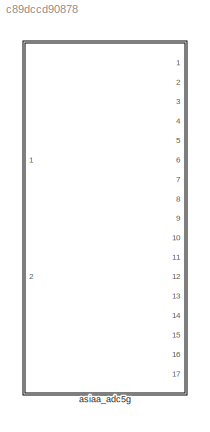
MODEL slx_c89dccd90878
KIND model
CONFIG AbsTol = auto
CONFIG EnableMultiTasking = off
CONFIG FixedStep = auto
CONFIG MaxStep = auto
CONFIG MinStep = auto
CONFIG RelTol = 1e-3
CONFIG SampleTimeConstraint = Unconstrained
CONFIG Solver = VariableStepAuto
CONFIG SolverName = VariableStepAuto
CONFIG StartTime = 0.0
CONFIG StopTime = 10.0
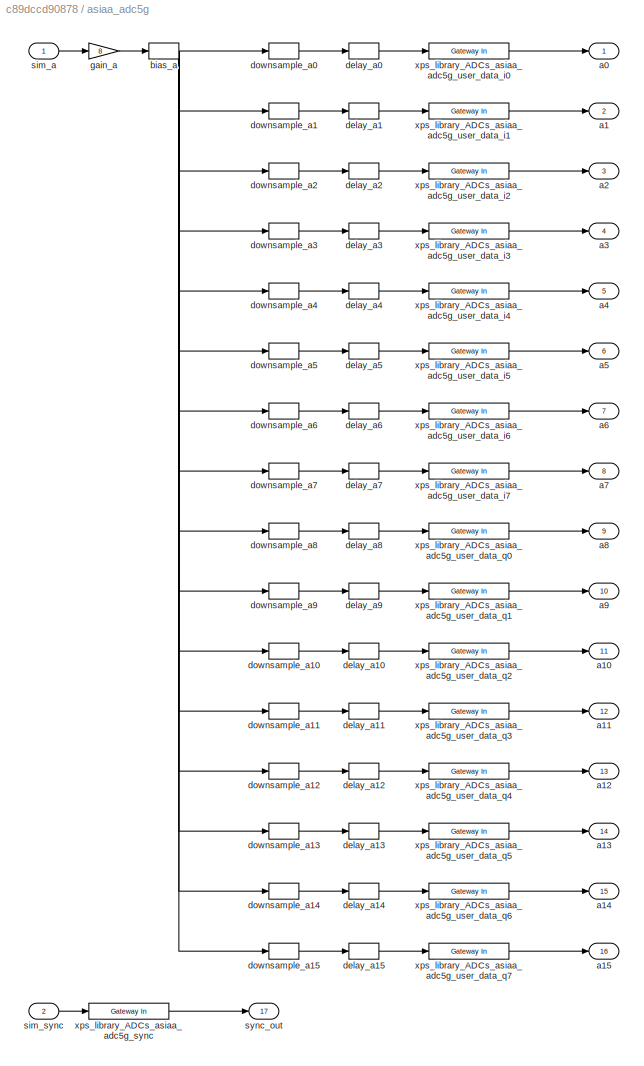
BLOCK [SubSystem] asiaa_adc5g
  Ports = [2, 17]
  RequestExecContextInheritance = off
  ShowPortLabels = SignalName
  Tag = xps:adc5g
  UserDataPersistent = on
  Variant = off
BLOCK [Outport] asiaa_adc5g/a0
  IconDisplay = Port number
BLOCK [Outport] asiaa_adc5g/a1
  IconDisplay = Port number
  Port = 2
BLOCK [Outport] asiaa_adc5g/a10
  IconDisplay = Port number
  Port = 11
BLOCK [Outport] asiaa_adc5g/a11
  IconDisplay = Port number
  Port = 12
BLOCK [Outport] asiaa_adc5g/a12
  IconDisplay = Port number
  Port = 13
BLOCK [Outport] asiaa_adc5g/a13
  IconDisplay = Port number
  Port = 14
BLOCK [Outport] asiaa_adc5g/a14
  IconDisplay = Port number
  Port = 15
BLOCK [Outport] asiaa_adc5g/a15
  IconDisplay = Port number
  Port = 16
BLOCK [Outport] asiaa_adc5g/a2
  IconDisplay = Port number
  Port = 3
BLOCK [Outport] asiaa_adc5g/a3
  IconDisplay = Port number
  Port = 4
BLOCK [Outport] asiaa_adc5g/a4
  IconDisplay = Port number
  Port = 5
BLOCK [Outport] asiaa_adc5g/a5
  IconDisplay = Port number
  Port = 6
BLOCK [Outport] asiaa_adc5g/a6
  IconDisplay = Port number
  Port = 7
BLOCK [Outport] asiaa_adc5g/a7
  IconDisplay = Port number
  Port = 8
BLOCK [Outport] asiaa_adc5g/a8
  IconDisplay = Port number
  Port = 9
BLOCK [Outport] asiaa_adc5g/a9
  IconDisplay = Port number
  Port = 10
BLOCK [Bias] asiaa_adc5g/bias_a
  Bias = 8
BLOCK [Delay] asiaa_adc5g/delay_a0
  InitialCondition = 0
  InputPortMap = u0
  InputProcessing = Inherited
  Ports = [1, 1]
BLOCK [Delay] asiaa_adc5g/delay_a1
  DelayLength = 1
  InitialCondition = 0
  InputPortMap = u0
  InputProcessing = Inherited
  Ports = [1, 1]
BLOCK [Delay] asiaa_adc5g/delay_a10
  DelayLength = 1
  InitialCondition = 0
  InputPortMap = u0
  InputProcessing = Inherited
  Ports = [1, 1]
BLOCK [Delay] asiaa_adc5g/delay_a11
  DelayLength = 1
  InitialCondition = 0
  InputPortMap = u0
  InputProcessing = Inherited
  Ports = [1, 1]
BLOCK [Delay] asiaa_adc5g/delay_a12
  DelayLength = 1
  InitialCondition = 0
  InputPortMap = u0
  InputProcessing = Inherited
  Ports = [1, 1]
BLOCK [Delay] asiaa_adc5g/delay_a13
  DelayLength = 1
  InitialCondition = 0
  InputPortMap = u0
  InputProcessing = Inherited
  Ports = [1, 1]
BLOCK [Delay] asiaa_adc5g/delay_a14
  DelayLength = 1
  InitialCondition = 0
  InputPortMap = u0
  InputProcessing = Inherited
  Ports = [1, 1]
BLOCK [Delay] asiaa_adc5g/delay_a15
  DelayLength = 1
  InitialCondition = 0
  InputPortMap = u0
  InputProcessing = Inherited
  Ports = [1, 1]
BLOCK [Delay] asiaa_adc5g/delay_a2
  DelayLength = 1
  InitialCondition = 0
  InputPortMap = u0
  InputProcessing = Inherited
  Ports = [1, 1]
BLOCK [Delay] asiaa_adc5g/delay_a3
  DelayLength = 1
  InitialCondition = 0
  InputPortMap = u0
  InputProcessing = Inherited
  Ports = [1, 1]
BLOCK [Delay] asiaa_adc5g/delay_a4
  DelayLength = 1
  InitialCondition = 0
  InputPortMap = u0
  InputProcessing = Inherited
  Ports = [1, 1]
BLOCK [Delay] asiaa_adc5g/delay_a5
  DelayLength = 1
  InitialCondition = 0
  InputPortMap = u0
  InputProcessing = Inherited
  Ports = [1, 1]
BLOCK [Delay] asiaa_adc5g/delay_a6
  DelayLength = 1
  InitialCondition = 0
  InputPortMap = u0
  InputProcessing = Inherited
  Ports = [1, 1]
BLOCK [Delay] asiaa_adc5g/delay_a7
  DelayLength = 1
  InitialCondition = 0
  InputPortMap = u0
  InputProcessing = Inherited
  Ports = [1, 1]
BLOCK [Delay] asiaa_adc5g/delay_a8
  DelayLength = 1
  InitialCondition = 0
  InputPortMap = u0
  InputProcessing = Inherited
  Ports = [1, 1]
BLOCK [Delay] asiaa_adc5g/delay_a9
  DelayLength = 1
  InitialCondition = 0
  InputPortMap = u0
  InputProcessing = Inherited
  Ports = [1, 1]
BLOCK [DownSample] asiaa_adc5g/downsample_a0
  InputProcessing = Elements as channels (sample based)
  N = 16
  RateOptions = Allow multirate processing
BLOCK [DownSample] asiaa_adc5g/downsample_a1
  InputProcessing = Elements as channels (sample based)
  N = 16
  RateOptions = Allow multirate processing
  phase = 1
BLOCK [DownSample] asiaa_adc5g/downsample_a10
  InputProcessing = Elements as channels (sample based)
  N = 16
  RateOptions = Allow multirate processing
  phase = 10
BLOCK [DownSample] asiaa_adc5g/downsample_a11
  InputProcessing = Elements as channels (sample based)
  N = 16
  RateOptions = Allow multirate processing
  phase = 11
BLOCK [DownSample] asiaa_adc5g/downsample_a12
  InputProcessing = Elements as channels (sample based)
  N = 16
  RateOptions = Allow multirate processing
  phase = 12
BLOCK [DownSample] asiaa_adc5g/downsample_a13
  InputProcessing = Elements as channels (sample based)
  N = 16
  RateOptions = Allow multirate processing
  phase = 13
BLOCK [DownSample] asiaa_adc5g/downsample_a14
  InputProcessing = Elements as channels (sample based)
  N = 16
  RateOptions = Allow multirate processing
  phase = 14
BLOCK [DownSample] asiaa_adc5g/downsample_a15
  InputProcessing = Elements as channels (sample based)
  N = 16
  RateOptions = Allow multirate processing
  phase = 15
BLOCK [DownSample] asiaa_adc5g/downsample_a2
  InputProcessing = Elements as channels (sample based)
  N = 16
  RateOptions = Allow multirate processing
  phase = 2
BLOCK [DownSample] asiaa_adc5g/downsample_a3
  InputProcessing = Elements as channels (sample based)
  N = 16
  RateOptions = Allow multirate processing
  phase = 3
BLOCK [DownSample] asiaa_adc5g/downsample_a4
  InputProcessing = Elements as channels (sample based)
  N = 16
  RateOptions = Allow multirate processing
  phase = 4
BLOCK [DownSample] asiaa_adc5g/downsample_a5
  InputProcessing = Elements as channels (sample based)
  N = 16
  RateOptions = Allow multirate processing
  phase = 5
BLOCK [DownSample] asiaa_adc5g/downsample_a6
  InputProcessing = Elements as channels (sample based)
  N = 16
  RateOptions = Allow multirate processing
  phase = 6
BLOCK [DownSample] asiaa_adc5g/downsample_a7
  InputProcessing = Elements as channels (sample based)
  N = 16
  RateOptions = Allow multirate processing
  phase = 7
BLOCK [DownSample] asiaa_adc5g/downsample_a8
  InputProcessing = Elements as channels (sample based)
  N = 16
  RateOptions = Allow multirate processing
  phase = 8
BLOCK [DownSample] asiaa_adc5g/downsample_a9
  InputProcessing = Elements as channels (sample based)
  N = 16
  RateOptions = Allow multirate processing
  phase = 9
BLOCK [Gain] asiaa_adc5g/gain_a
  Gain = 8
BLOCK [Inport] asiaa_adc5g/sim_a
  IconDisplay = Port number
BLOCK [Inport] asiaa_adc5g/sim_sync
  IconDisplay = Port number
  Port = 2
BLOCK [Outport] asiaa_adc5g/sync_out
  IconDisplay = Port number
  Port = 17
BLOCK [Reference] asiaa_adc5g/xps_library_ADCs_asiaa_adc5g_sync  REF=xbsIndex_r4/Gateway In
  Ports = [1, 1]
  SourceBlock = xbsIndex_r4/Gateway In
  SourceType = Xilinx Gateway In Block
BLOCK [Reference] asiaa_adc5g/xps_library_ADCs_asiaa_adc5g_user_data_i0  REF=xbsIndex_r4/Gateway In
  Ports = [1, 1]
  SourceBlock = xbsIndex_r4/Gateway In
  SourceType = Xilinx Gateway In Block
BLOCK [Reference] asiaa_adc5g/xps_library_ADCs_asiaa_adc5g_user_data_i1  REF=xbsIndex_r4/Gateway In
  Ports = [1, 1]
  SourceBlock = xbsIndex_r4/Gateway In
  SourceType = Xilinx Gateway In Block
BLOCK [Reference] asiaa_adc5g/xps_library_ADCs_asiaa_adc5g_user_data_i2  REF=xbsIndex_r4/Gateway In
  Ports = [1, 1]
  SourceBlock = xbsIndex_r4/Gateway In
  SourceType = Xilinx Gateway In Block
BLOCK [Reference] asiaa_adc5g/xps_library_ADCs_asiaa_adc5g_user_data_i3  REF=xbsIndex_r4/Gateway In
  Ports = [1, 1]
  SourceBlock = xbsIndex_r4/Gateway In
  SourceType = Xilinx Gateway In Block
BLOCK [Reference] asiaa_adc5g/xps_library_ADCs_asiaa_adc5g_user_data_i4  REF=xbsIndex_r4/Gateway In
  Ports = [1, 1]
  SourceBlock = xbsIndex_r4/Gateway In
  SourceType = Xilinx Gateway In Block
BLOCK [Reference] asiaa_adc5g/xps_library_ADCs_asiaa_adc5g_user_data_i5  REF=xbsIndex_r4/Gateway In
  Ports = [1, 1]
  SourceBlock = xbsIndex_r4/Gateway In
  SourceType = Xilinx Gateway In Block
BLOCK [Reference] asiaa_adc5g/xps_library_ADCs_asiaa_adc5g_user_data_i6  REF=xbsIndex_r4/Gateway In
  Ports = [1, 1]
  SourceBlock = xbsIndex_r4/Gateway In
  SourceType = Xilinx Gateway In Block
BLOCK [Reference] asiaa_adc5g/xps_library_ADCs_asiaa_adc5g_user_data_i7  REF=xbsIndex_r4/Gateway In
  Ports = [1, 1]
  SourceBlock = xbsIndex_r4/Gateway In
  SourceType = Xilinx Gateway In Block
BLOCK [Reference] asiaa_adc5g/xps_library_ADCs_asiaa_adc5g_user_data_q0  REF=xbsIndex_r4/Gateway In
  Ports = [1, 1]
  SourceBlock = xbsIndex_r4/Gateway In
  SourceType = Xilinx Gateway In Block
BLOCK [Reference] asiaa_adc5g/xps_library_ADCs_asiaa_adc5g_user_data_q1  REF=xbsIndex_r4/Gateway In
  Ports = [1, 1]
  SourceBlock = xbsIndex_r4/Gateway In
  SourceType = Xilinx Gateway In Block
BLOCK [Reference] asiaa_adc5g/xps_library_ADCs_asiaa_adc5g_user_data_q2  REF=xbsIndex_r4/Gateway In
  Ports = [1, 1]
  SourceBlock = xbsIndex_r4/Gateway In
  SourceType = Xilinx Gateway In Block
BLOCK [Reference] asiaa_adc5g/xps_library_ADCs_asiaa_adc5g_user_data_q3  REF=xbsIndex_r4/Gateway In
  Ports = [1, 1]
  SourceBlock = xbsIndex_r4/Gateway In
  SourceType = Xilinx Gateway In Block
BLOCK [Reference] asiaa_adc5g/xps_library_ADCs_asiaa_adc5g_user_data_q4  REF=xbsIndex_r4/Gateway In
  Ports = [1, 1]
  SourceBlock = xbsIndex_r4/Gateway In
  SourceType = Xilinx Gateway In Block
BLOCK [Reference] asiaa_adc5g/xps_library_ADCs_asiaa_adc5g_user_data_q5  REF=xbsIndex_r4/Gateway In
  Ports = [1, 1]
  SourceBlock = xbsIndex_r4/Gateway In
  SourceType = Xilinx Gateway In Block
BLOCK [Reference] asiaa_adc5g/xps_library_ADCs_asiaa_adc5g_user_data_q6  REF=xbsIndex_r4/Gateway In
  Ports = [1, 1]
  SourceBlock = xbsIndex_r4/Gateway In
  SourceType = Xilinx Gateway In Block
BLOCK [Reference] asiaa_adc5g/xps_library_ADCs_asiaa_adc5g_user_data_q7  REF=xbsIndex_r4/Gateway In
  Ports = [1, 1]
  SourceBlock = xbsIndex_r4/Gateway In
  SourceType = Xilinx Gateway In Block
NET asiaa_adc5g/bias_a:1 -> asiaa_adc5g/downsample_a0:1, asiaa_adc5g/downsample_a10:1, asiaa_adc5g/downsample_a11:1, asiaa_adc5g/downsample_a12:1, asiaa_adc5g/downsample_a13:1, asiaa_adc5g/downsample_a14:1, asiaa_adc5g/downsample_a15:1, asiaa_adc5g/downsample_a1:1, asiaa_adc5g/downsample_a2:1, asiaa_adc5g/downsample_a3:1, asiaa_adc5g/downsample_a4:1, asiaa_adc5g/downsample_a5:1, asiaa_adc5g/downsample_a6:1, asiaa_adc5g/downsample_a7:1, asiaa_adc5g/downsample_a8:1, asiaa_adc5g/downsample_a9:1
LINE asiaa_adc5g/delay_a0:1 -> asiaa_adc5g/xps_library_ADCs_asiaa_adc5g_user_data_i0:1
LINE asiaa_adc5g/delay_a10:1 -> asiaa_adc5g/xps_library_ADCs_asiaa_adc5g_user_data_q2:1
LINE asiaa_adc5g/delay_a11:1 -> asiaa_adc5g/xps_library_ADCs_asiaa_adc5g_user_data_q3:1
LINE asiaa_adc5g/delay_a12:1 -> asiaa_adc5g/xps_library_ADCs_asiaa_adc5g_user_data_q4:1
LINE asiaa_adc5g/delay_a13:1 -> asiaa_adc5g/xps_library_ADCs_asiaa_adc5g_user_data_q5:1
LINE asiaa_adc5g/delay_a14:1 -> asiaa_adc5g/xps_library_ADCs_asiaa_adc5g_user_data_q6:1
LINE asiaa_adc5g/delay_a15:1 -> asiaa_adc5g/xps_library_ADCs_asiaa_adc5g_user_data_q7:1
LINE asiaa_adc5g/delay_a1:1 -> asiaa_adc5g/xps_library_ADCs_asiaa_adc5g_user_data_i1:1
LINE asiaa_adc5g/delay_a2:1 -> asiaa_adc5g/xps_library_ADCs_asiaa_adc5g_user_data_i2:1
LINE asiaa_adc5g/delay_a3:1 -> asiaa_adc5g/xps_library_ADCs_asiaa_adc5g_user_data_i3:1
LINE asiaa_adc5g/delay_a4:1 -> asiaa_adc5g/xps_library_ADCs_asiaa_adc5g_user_data_i4:1
LINE asiaa_adc5g/delay_a5:1 -> asiaa_adc5g/xps_library_ADCs_asiaa_adc5g_user_data_i5:1
LINE asiaa_adc5g/delay_a6:1 -> asiaa_adc5g/xps_library_ADCs_asiaa_adc5g_user_data_i6:1
LINE asiaa_adc5g/delay_a7:1 -> asiaa_adc5g/xps_library_ADCs_asiaa_adc5g_user_data_i7:1
LINE asiaa_adc5g/delay_a8:1 -> asiaa_adc5g/xps_library_ADCs_asiaa_adc5g_user_data_q0:1
LINE asiaa_adc5g/delay_a9:1 -> asiaa_adc5g/xps_library_ADCs_asiaa_adc5g_user_data_q1:1
LINE asiaa_adc5g/downsample_a0:1 -> asiaa_adc5g/delay_a0:1
LINE asiaa_adc5g/downsample_a10:1 -> asiaa_adc5g/delay_a10:1
LINE asiaa_adc5g/downsample_a11:1 -> asiaa_adc5g/delay_a11:1
LINE asiaa_adc5g/downsample_a12:1 -> asiaa_adc5g/delay_a12:1
LINE asiaa_adc5g/downsample_a13:1 -> asiaa_adc5g/delay_a13:1
LINE asiaa_adc5g/downsample_a14:1 -> asiaa_adc5g/delay_a14:1
LINE asiaa_adc5g/downsample_a15:1 -> asiaa_adc5g/delay_a15:1
LINE asiaa_adc5g/downsample_a1:1 -> asiaa_adc5g/delay_a1:1
LINE asiaa_adc5g/downsample_a2:1 -> asiaa_adc5g/delay_a2:1
LINE asiaa_adc5g/downsample_a3:1 -> asiaa_adc5g/delay_a3:1
LINE asiaa_adc5g/downsample_a4:1 -> asiaa_adc5g/delay_a4:1
LINE asiaa_adc5g/downsample_a5:1 -> asiaa_adc5g/delay_a5:1
LINE asiaa_adc5g/downsample_a6:1 -> asiaa_adc5g/delay_a6:1
LINE asiaa_adc5g/downsample_a7:1 -> asiaa_adc5g/delay_a7:1
LINE asiaa_adc5g/downsample_a8:1 -> asiaa_adc5g/delay_a8:1
LINE asiaa_adc5g/downsample_a9:1 -> asiaa_adc5g/delay_a9:1
LINE asiaa_adc5g/gain_a:1 -> asiaa_adc5g/bias_a:1
LINE asiaa_adc5g/sim_a:1 -> asiaa_adc5g/gain_a:1
LINE asiaa_adc5g/sim_sync:1 -> asiaa_adc5g/xps_library_ADCs_asiaa_adc5g_sync:1
LINE asiaa_adc5g/xps_library_ADCs_asiaa_adc5g_sync:1 -> asiaa_adc5g/sync_out:1
LINE asiaa_adc5g/xps_library_ADCs_asiaa_adc5g_user_data_i0:1 -> asiaa_adc5g/a0:1
LINE asiaa_adc5g/xps_library_ADCs_asiaa_adc5g_user_data_i1:1 -> asiaa_adc5g/a1:1
LINE asiaa_adc5g/xps_library_ADCs_asiaa_adc5g_user_data_i2:1 -> asiaa_adc5g/a2:1
LINE asiaa_adc5g/xps_library_ADCs_asiaa_adc5g_user_data_i3:1 -> asiaa_adc5g/a3:1
LINE asiaa_adc5g/xps_library_ADCs_asiaa_adc5g_user_data_i4:1 -> asiaa_adc5g/a4:1
LINE asiaa_adc5g/xps_library_ADCs_asiaa_adc5g_user_data_i5:1 -> asiaa_adc5g/a5:1
LINE asiaa_adc5g/xps_library_ADCs_asiaa_adc5g_user_data_i6:1 -> asiaa_adc5g/a6:1
LINE asiaa_adc5g/xps_library_ADCs_asiaa_adc5g_user_data_i7:1 -> asiaa_adc5g/a7:1
LINE asiaa_adc5g/xps_library_ADCs_asiaa_adc5g_user_data_q0:1 -> asiaa_adc5g/a8:1
LINE asiaa_adc5g/xps_library_ADCs_asiaa_adc5g_user_data_q1:1 -> asiaa_adc5g/a9:1
LINE asiaa_adc5g/xps_library_ADCs_asiaa_adc5g_user_data_q2:1 -> asiaa_adc5g/a10:1
LINE asiaa_adc5g/xps_library_ADCs_asiaa_adc5g_user_data_q3:1 -> asiaa_adc5g/a11:1
LINE asiaa_adc5g/xps_library_ADCs_asiaa_adc5g_user_data_q4:1 -> asiaa_adc5g/a12:1
LINE asiaa_adc5g/xps_library_ADCs_asiaa_adc5g_user_data_q5:1 -> asiaa_adc5g/a13:1
LINE asiaa_adc5g/xps_library_ADCs_asiaa_adc5g_user_data_q6:1 -> asiaa_adc5g/a14:1
LINE asiaa_adc5g/xps_library_ADCs_asiaa_adc5g_user_data_q7:1 -> asiaa_adc5g/a15:1
note: NET lines group one-source signal fan-out (src -> all destinations, sorted); 1:1 wires keep LINE
